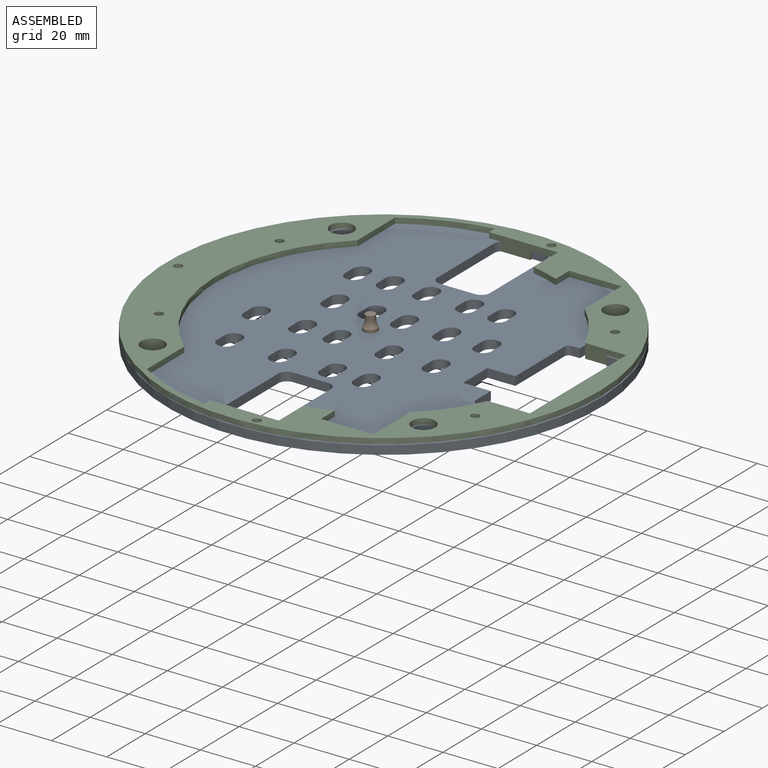
[diagram: assembled view]
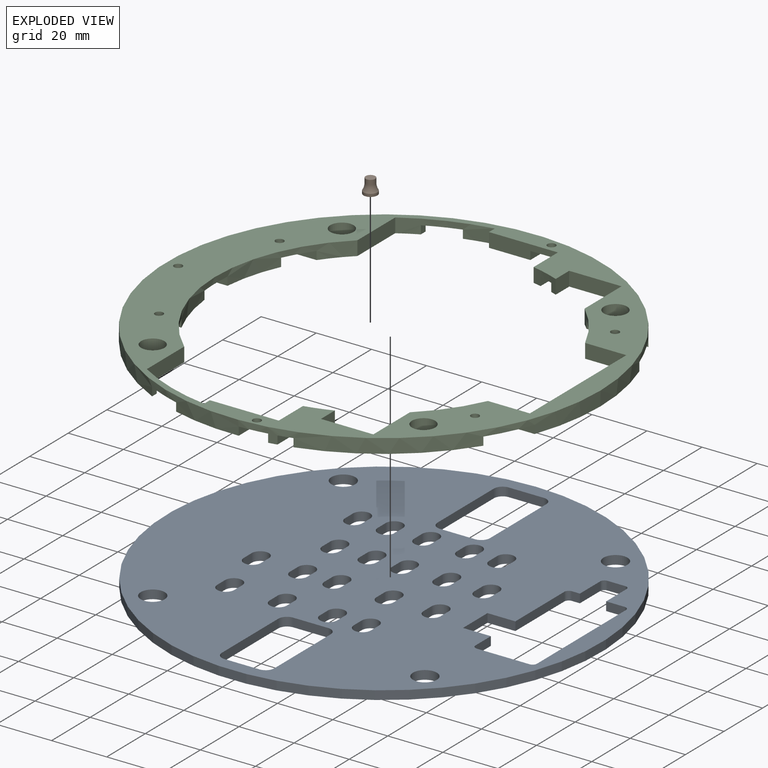
[diagram: exploded view]
GUIDED TOUR — MATED ASSEMBLY (Onshape document 0efaec865e1cf48acecaf9b9, AutoMate assembly 0efaec865e1cf48acecaf9b9_902ffaf8468b0cf322e7fb1f_577da3006865b25e9c6954a8_default)

This assembly has 3 components, labeled P0..P2 below (a component is one placed occurrence of a part; the same part can appear more than once), held together by 2 mates. A mate is a constraint between two components; its type names the relative motion it leaves free:
  FASTENED — locks the two components together rigidly (no relative motion),
  PLANAR — leaves sliding in the plane through the listed point (normal = the listed direction) and rotation about that normal free.
Axis/direction vectors are unit vectors and 'through' points are millimeter coordinates, both in the assembly's world frame.

MATES
  1. FASTENED "Fastened 1": P2 <-> P0, direction (0.000, 0.000, -1.000) through (-45.80, -50.73, -7.18) mm
  2. PLANAR "Planar 1": P0 <-> P1, direction (0.000, 0.000, 1.000) through (-1.19, -1.60, -4.00) mm

ASSEMBLY ORDER
  1. P2 — the base component [order verified]
  2. P0 [order verified]
  3. P1 [order verified]
(P0 verified with a relaxed clearance tolerance: the source model stores slight part interference there.)
Order-tag legend:
  [order verified] — this step's position reverses a verified removal order: the component was checked to insert without passing through the ones already placed.

Of the 3 components, 1 carries the full construction recipe — the FeatureScript program that regenerates the part's solid from scratch; the rest are supplied as boundary geometry only.
Each toured component is shown spotlighted twice — in the assembled view, then in the exploded view, where a leader line traces a displaced component back to its assembled socket (saturated green if recipe-attached, orange if geometry-only; every other component desaturated gray) — followed by its recipe or geometry summary and the mates that hold it.
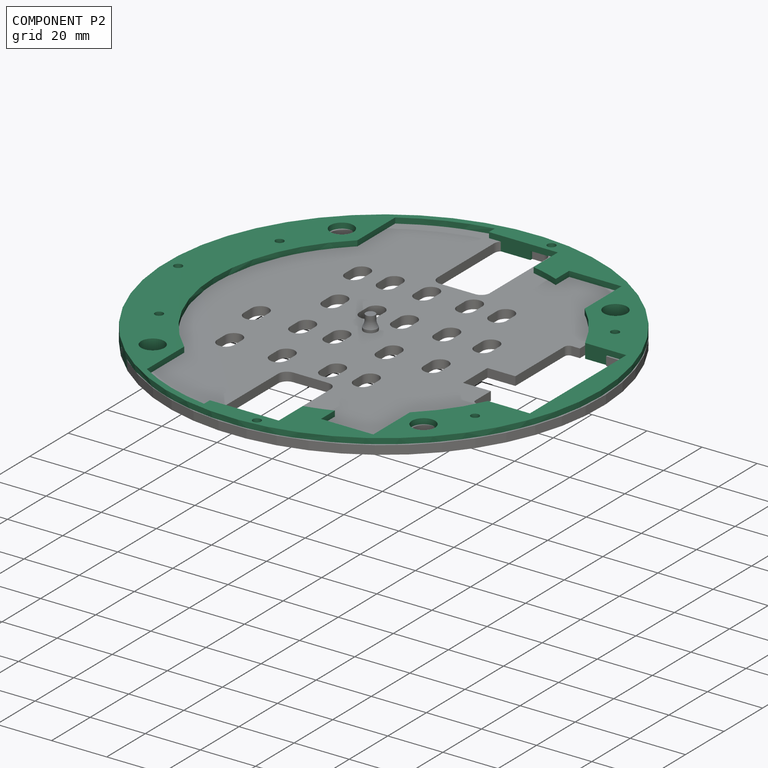
[diagram: component P2 — assembled]
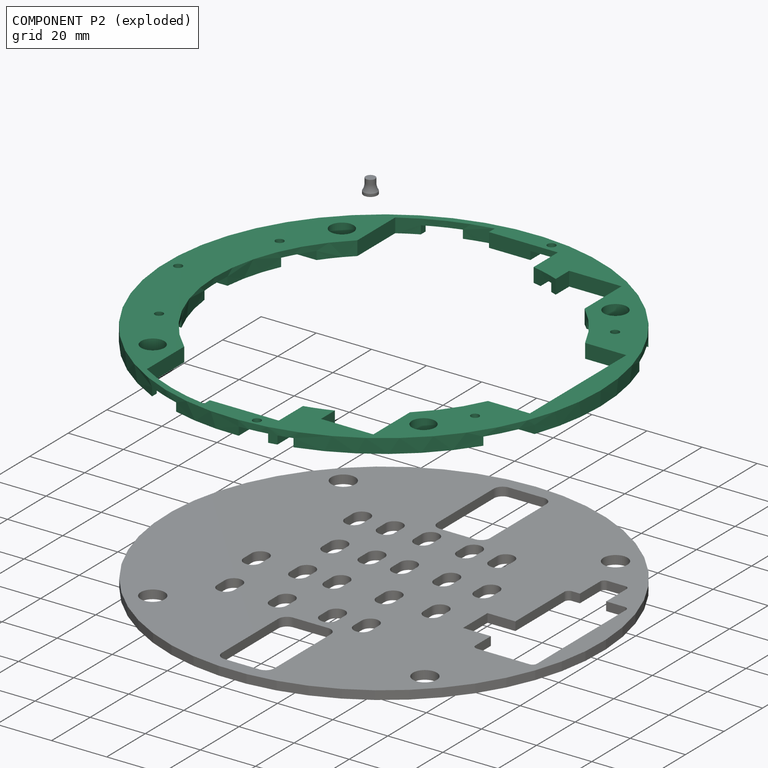
[diagram: component P2 — exploded]
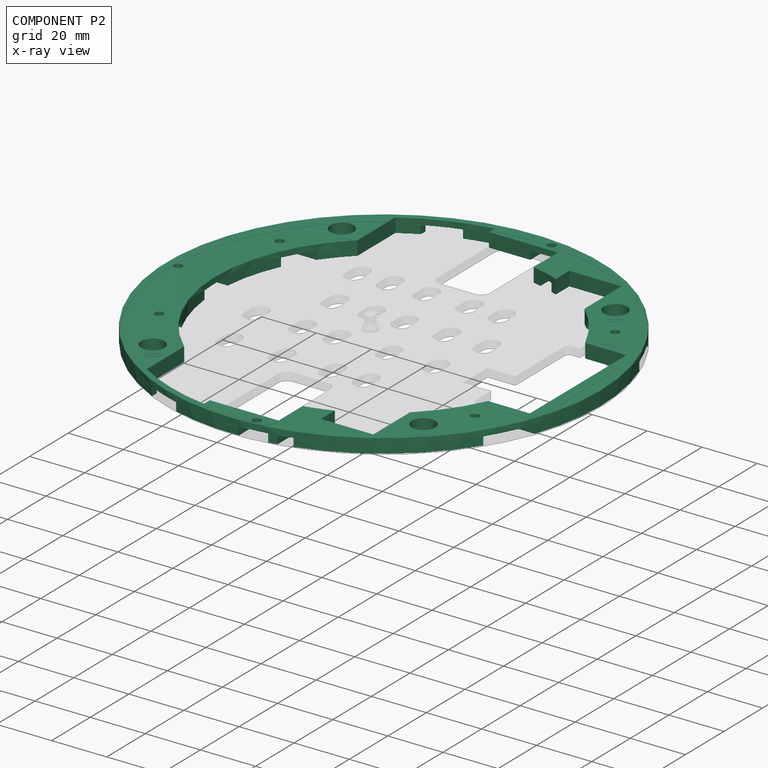
[diagram: component P2 — x-ray view]
COMPONENT P2 — recipe-attached (CADFS 00370976, mesh-verified: the recipe's output STEP matches this component's geometry to below the mesh-comparison resolution (tessellation chordal tolerance ~0.334 mm)).
Held by: FASTENED mate "Fastened 1" to P0.
Construction recipe (FeatureScript — the CAD program that rebuilds this solid; sketch coordinates are in the units given by the * unit suffixes, e.g. mm):

FeatureScript 1511;
import(path : "onshape/std/geometry.fs", version : "1511.0");
import(path : "onshape/std/common.fs", version : "1511.0");
const mm = millimeter;
const VERTEX = EntityType.VERTEX;
const EDGE = EntityType.EDGE;
const FACE = EntityType.FACE;
const BODY = EntityType.BODY;
function v(x, y){return vector(x, y);}
function OD(order){return orderDisambiguation(order);}
function OSD(set){return originalSetDisambiguation(set);}
function TD(topology){return topologyDisambiguation(topology);}
function TDD(query){return trueDependencyDisambiguation(query);}
function sQuery(a, b, c) {return sketchEntityQuery(a, b, c);}

annotation { "Feature Type Name" : "Feature", "Feature Type Description" : "" }
export const myFeature = defineFeature(function(context is Context, id is Id, definition is map)
    precondition{}
    {
        {
            var Q0;
            Q0=qCreatedBy(makeId("Top.planeOp"),FACE);
            var sketch = newSketch(context, id + "F0", { "sketchPlane" : qUnion([Q0])});
            skCircle(sketch, "E0", {"center": v(-0.13, 0.27) * mm, "radius": 78.74 * mm});
            skCircle(sketch, "E1", {"center": v(-0.13, 0.27) * mm, "radius": 61 * mm});
            skCircle(sketch, "E2", {"center": v(49.06, -49.32) * mm, "radius": 4.2 * mm});
            skCircle(sketch, "E3", {"center": v(-49.03, -49.6) * mm, "radius": 4.2 * mm});
            skCircle(sketch, "E4", {"center": v(-49.73, 49.45) * mm, "radius": 4.2 * mm});
            skCircle(sketch, "E5", {"center": v(49.76, 49.17) * mm, "radius": 4.2 * mm});
            skLineSegment(sketch, "E6", {"start": v(0, 0) * mm, "end": v(0, 79.01) * mm, "construction": true});
            skLineSegment(sketch, "E7", {"start": v(0, 72.51) * mm, "end": v(12.5, 72.51) * mm});
            skLineSegment(sketch, "E8", {"start": v(12.5, 72.51) * mm, "end": v(12.5, 59.95) * mm});
            skLineSegment(sketch, "E9", {"start": v(0, 72.51) * mm, "end": v(-12.5, 72.51) * mm});
            skLineSegment(sketch, "E10", {"start": v(-12.5, 72.51) * mm, "end": v(-12.5, 60) * mm});
            skLineSegment(sketch, "E11", {"start": v(12.37, -59.43) * mm, "end": v(12.37, -71.97) * mm});
            skLineSegment(sketch, "E12", {"start": v(12.37, -71.97) * mm, "end": v(-12.63, -71.97) * mm});
            skLineSegment(sketch, "E13", {"start": v(-12.63, -71.97) * mm, "end": v(-12.63, -59.43) * mm});
            skLineSegment(sketch, "E14", {"start": v(-0.13, 0.27) * mm, "end": v(-0.13, -78.47) * mm, "construction": true});
            skLineSegment(sketch, "E15", {"start": v(55.64, 25) * mm, "end": v(70.61, 25) * mm});
            skLineSegment(sketch, "E16", {"start": v(70.61, 25) * mm, "end": v(70.61, -25) * mm});
            skLineSegment(sketch, "E17", {"start": v(70.61, -25) * mm, "end": v(55.4, -25) * mm});
            skLineSegment(sketch, "E18", {"start": v(41.66, 44.71) * mm, "end": v(41.66, 63.86) * mm});
            skLineSegment(sketch, "E19", {"start": v(22.66, 56.86) * mm, "end": v(22.66, 63.86) * mm});
            skLineSegment(sketch, "E20", {"start": v(22.66, 63.86) * mm, "end": v(41.66, 63.86) * mm});
            skLineSegment(sketch, "E21", {"start": v(40.96, -44.81) * mm, "end": v(40.96, -63.8) * mm});
            skLineSegment(sketch, "E22", {"start": v(40.96, -63.8) * mm, "end": v(21.96, -63.8) * mm});
            skLineSegment(sketch, "E23", {"start": v(21.96, -63.8) * mm, "end": v(21.96, -56.59) * mm});
            skLineSegment(sketch, "E24", {"start": v(-41.23, 45.34) * mm, "end": v(-41.23, 64.93) * mm});
            skLineSegment(sketch, "E25", {"start": v(-40.53, -45.43) * mm, "end": v(-40.53, -64.81) * mm});
            skLineSegment(sketch, "E26", {"start": v(-12.5, 72.51) * mm, "end": v(-12.5, 75.54) * mm});
            skLineSegment(sketch, "E27", {"start": v(-12.5, 75.54) * mm, "end": v(-12.5, 78.04) * mm, "construction": true});
            skLineSegment(sketch, "E28", {"start": v(-41.23, 64.93) * mm, "end": v(-41.23, 67.43) * mm, "construction": true});
            skLineSegment(sketch, "E29", {"start": v(-12.63, -71.97) * mm, "end": v(-12.63, -74.97) * mm});
            skLineSegment(sketch, "E30", {"start": v(-12.63, -74.97) * mm, "end": v(-12.63, -77.47) * mm, "construction": true});
            skLineSegment(sketch, "E31", {"start": v(-40.53, -64.81) * mm, "end": v(-40.53, -67.31) * mm, "construction": true});
            skArc(sketch, "E32", {"start": v(-12.5, 75.54) * mm, "mid": v(-27.39, 71.65) * mm, "end": v(-41.23, 64.93) * mm});
            skArc(sketch, "E33", {"start": v(-40.53, -64.81) * mm, "mid": v(-27.1, -71.3) * mm, "end": v(-12.63, -74.97) * mm});
            skSolve(sketch);
        }
        {
            var Q0;
            Q0=makeQuery(id+"F0.imprint","IMPRINT",FACE,{"disambiguationData":[TD([[makeQuery(id+"F0.imprint","IMPRINT",EDGE,{"derivedFrom":sQuery(id+"F0.wireOp",EDGE,"E0")}),1.0]])]});
            extrude(context, id + "F1", {"entities" : qUnion([Q0]), "depth" : 5.17 * mm});
        }
        {
            var Q0;
            Q0=makeQuery(id+"F1.opExtrude","CAP_FACE",FACE,{"disambiguationData":[OSD([sQuery(id+"F0.wireOp",EDGE,"E0"),sQuery(id+"F0.wireOp",EDGE,"E1"),sQuery(id+"F0.wireOp",EDGE,"E2"),sQuery(id+"F0.wireOp",EDGE,"E3"),sQuery(id+"F0.wireOp",EDGE,"E4"),sQuery(id+"F0.wireOp",EDGE,"E5"),sQuery(id+"F0.wireOp",EDGE,"E7"),sQuery(id+"F0.wireOp",EDGE,"E8"),sQuery(id+"F0.wireOp",EDGE,"E9"),sQuery(id+"F0.wireOp",EDGE,"E10"),sQuery(id+"F0.wireOp",EDGE,"E11"),sQuery(id+"F0.wireOp",EDGE,"E12"),sQuery(id+"F0.wireOp",EDGE,"E13"),sQuery(id+"F0.wireOp",EDGE,"E15"),sQuery(id+"F0.wireOp",EDGE,"E16"),sQuery(id+"F0.wireOp",EDGE,"E17"),sQuery(id+"F0.wireOp",EDGE,"VDoqfpsv-4qcT-wrSo-6fLa-toxSMHrRfi2n"),sQuery(id+"F0.wireOp",EDGE,"kHyOE8iL-SrmW-cCEl-JhYE-iEjDphq27qqo"),sQuery(id+"F0.wireOp",EDGE,"IaEaYM1Z-oLR1-5D0C-0tBp-6euCYm71ufNU"),sQuery(id+"F0.wireOp",EDGE,"CqAKj5as-z6O8-Euua-ijw3-IaK4U2F1WzIA"),sQuery(id+"F0.wireOp",EDGE,"bdrpM5pd-59yM-zCnh-CLfW-zA1UQOxDqrim"),sQuery(id+"F0.wireOp",EDGE,"NGnk7T17-qjil-4RGJ-5A7U-nu3JMBgdJVSq")])],"isStart":true});
            var sketch = newSketch(context, id + "F2", { "sketchPlane" : qUnion([Q0])});
            skLineSegment(sketch, "E34", {"start": v(-49.2, 35.94) * mm, "end": v(-70.04, 35.94) * mm});
            skLineSegment(sketch, "E35", {"start": v(-55.2, 25.94) * mm, "end": v(-74.37, 25.94) * mm});
            skLineSegment(sketch, "E36", {"start": v(-22.63, 72.77) * mm, "end": v(-22.63, 75.18) * mm});
            skLineSegment(sketch, "E37", {"start": v(-34.63, 68.08) * mm, "end": v(-34.63, 70.5) * mm});
            skLineSegment(sketch, "E38", {"start": v(-55.4, -26.06) * mm, "end": v(-74.53, -26.06) * mm});
            skLineSegment(sketch, "E39", {"start": v(-49.53, -36.06) * mm, "end": v(-70.27, -36.06) * mm});
            skLineSegment(sketch, "E40", {"start": v(-22.5, -73.28) * mm, "end": v(-22.5, -75.77) * mm});
            skLineSegment(sketch, "E41", {"start": v(-34.5, -68.62) * mm, "end": v(-34.5, -71.11) * mm});
            skLineSegment(sketch, "E42", {"start": v(-60.85, -6.06) * mm, "end": v(-78.65, -6.06) * mm});
            skLineSegment(sketch, "E43", {"start": v(-60.8, 5.94) * mm, "end": v(-78.62, 5.94) * mm});
            skLineSegment(sketch, "E44", {"start": v(12.5, -72.51) * mm, "end": v(12.5, -78) * mm});
            skLineSegment(sketch, "E45", {"start": v(2.5, -72.51) * mm, "end": v(2.5, -78.97) * mm});
            skLineSegment(sketch, "E46", {"start": v(12.37, 71.97) * mm, "end": v(12.37, 77.47) * mm});
            skLineSegment(sketch, "E47", {"start": v(2.37, 71.97) * mm, "end": v(2.37, 78.43) * mm});
            skLineSegment(sketch, "E48", {"start": v(20.37, 57.18) * mm, "end": v(20.37, 75.75) * mm});
            skLineSegment(sketch, "E49", {"start": v(15.37, 76.93) * mm, "end": v(15.37, 58.72) * mm});
            skLineSegment(sketch, "E50", {"start": v(20.5, -57.68) * mm, "end": v(20.5, -76.26) * mm});
            skLineSegment(sketch, "E51", {"start": v(15.5, -59.24) * mm, "end": v(15.5, -77.45) * mm});
            skLineSegment(sketch, "E52", {"start": v(54.7, -27) * mm, "end": v(73.94, -27) * mm});
            skLineSegment(sketch, "E53", {"start": v(54.44, 27) * mm, "end": v(73.74, 27) * mm});
            skLineSegment(sketch, "E54", {"start": v(66.33, -42.5) * mm, "end": v(43.9, -42.5) * mm});
            skLineSegment(sketch, "E55", {"start": v(43.36, 42.5) * mm, "end": v(65.98, 42.5) * mm});
            skSolve(sketch);
        }
        {
            var Q0;
            {var subQ0=sQuery(id+"F2.wireOp",EDGE,"E36");Q0=makeQuery(id+"F2.imprint","IMPRINT",FACE,{"disambiguationData":[TD([[makeQuery(id+"F2.imprint","IMPRINT",EDGE,{"derivedFrom":subQ0}),1.0]])]});}
            var Q1;
            {var subQ0=sQuery(id+"F2.wireOp",EDGE,"qSOFF5Qn-LBtT-ckb4-KCcS-4EMrhRVFEw5l");Q1=makeQuery(id+"F2.imprint","IMPRINT",FACE,{"disambiguationData":[TD([[makeQuery(id+"F2.imprint","IMPRINT",EDGE,{"derivedFrom":subQ0}),-1.0]])]});}
            var Q2;
            {var subQ0=sQuery(id+"F2.wireOp",EDGE,"q6fSSL3S-2UqV-hRAR-x4fO-Y75Hsksp0FtS");Q2=makeQuery(id+"F2.imprint","IMPRINT",FACE,{"disambiguationData":[TD([[makeQuery(id+"F2.imprint","IMPRINT",EDGE,{"derivedFrom":subQ0}),1.0]])]});}
            var Q3;
            {var subQ0=sQuery(id+"F2.wireOp",EDGE,"E40");Q3=makeQuery(id+"F2.imprint","IMPRINT",FACE,{"disambiguationData":[TD([[makeQuery(id+"F2.imprint","IMPRINT",EDGE,{"derivedFrom":subQ0}),-1.0]])]});}
            var Q4;
            {var subQ0=sQuery(id+"F2.wireOp",EDGE,"E38");Q4=makeQuery(id+"F2.imprint","IMPRINT",FACE,{"disambiguationData":[TD([[makeQuery(id+"F2.imprint","IMPRINT",EDGE,{"derivedFrom":subQ0}),1.0]])]});}
            var Q5;
            {var subQ0=sQuery(id+"F2.wireOp",EDGE,"E42");Q5=makeQuery(id+"F2.imprint","IMPRINT",FACE,{"disambiguationData":[TD([[makeQuery(id+"F2.imprint","IMPRINT",EDGE,{"derivedFrom":subQ0}),-1.0]])]});}
            var Q6;
            {var subQ0=sQuery(id+"F2.wireOp",EDGE,"E34");Q6=makeQuery(id+"F2.imprint","IMPRINT",FACE,{"disambiguationData":[TD([[makeQuery(id+"F2.imprint","IMPRINT",EDGE,{"derivedFrom":subQ0}),1.0]])]});}
            var Q7;
            {var subQ0=sQuery(id+"F2.wireOp",EDGE,"E44");Q7=makeQuery(id+"F2.imprint","IMPRINT",FACE,{"disambiguationData":[TD([[makeQuery(id+"F2.imprint","IMPRINT",EDGE,{"derivedFrom":subQ0}),-1.0]])]});}
            var Q8;
            {var subQ0=sQuery(id+"F2.wireOp",EDGE,"E46");Q8=makeQuery(id+"F2.imprint","IMPRINT",FACE,{"disambiguationData":[TD([[makeQuery(id+"F2.imprint","IMPRINT",EDGE,{"derivedFrom":subQ0}),1.0]])]});}
            var Q9;
            {var subQ0=sQuery(id+"F2.wireOp",EDGE,"3tUUMQLs-xen7-DnnY-Bd8B-tcTG2vnb8p7U");Q9=makeQuery(id+"F2.imprint","IMPRINT",FACE,{"disambiguationData":[TD([[makeQuery(id+"F2.imprint","IMPRINT",EDGE,{"derivedFrom":subQ0}),-1.0]])]});}
            var Q10;
            {var subQ0=sQuery(id+"F2.wireOp",EDGE,"E48");Q10=makeQuery(id+"F2.imprint","IMPRINT",FACE,{"disambiguationData":[TD([[makeQuery(id+"F2.imprint","IMPRINT",EDGE,{"derivedFrom":subQ0}),1.0]])]});}
            var Q11;
            {var subQ0=sQuery(id+"F2.wireOp",EDGE,"E50");Q11=makeQuery(id+"F2.imprint","IMPRINT",FACE,{"disambiguationData":[TD([[makeQuery(id+"F2.imprint","IMPRINT",EDGE,{"derivedFrom":subQ0}),-1.0]])]});}
            var Q12;
            {var subQ0=sQuery(id+"F2.wireOp",EDGE,"E52");Q12=makeQuery(id+"F2.imprint","IMPRINT",FACE,{"disambiguationData":[TD([[makeQuery(id+"F2.imprint","IMPRINT",EDGE,{"derivedFrom":subQ0}),-1.0]])]});}
            var Q13;
            {var subQ0=sQuery(id+"F2.wireOp",EDGE,"E53");Q13=makeQuery(id+"F2.imprint","IMPRINT",FACE,{"disambiguationData":[TD([[makeQuery(id+"F2.imprint","IMPRINT",EDGE,{"derivedFrom":subQ0}),1.0]])]});}
            extrude(context, id + "F3", {"entities" : qUnion([Q0, Q1, Q2, Q3, Q4, Q5, Q6, Q7, Q8, Q9, Q10, Q11, Q12, Q13]), "operationType" : NewBodyOperationType.REMOVE, "oppositeDirection" : true, "depth" : 3 * mm});
        }
        {
            var Q0;
            Q0=makeQuery(id+"F3.boolean.opBoolean","COPY",FACE,{"derivedFrom":makeQuery(id+"F3.opExtrude","CAP_FACE",FACE,{"disambiguationData":[OSD([sQuery(id+"F0.wireOp",EDGE,"E0"),sQuery(id+"F0.wireOp",EDGE,"E1"),sQuery(id+"F2.wireOp",EDGE,"E38"),sQuery(id+"F2.wireOp",EDGE,"E39")])],"isStart":false})});
            var sketch = newSketch(context, id + "F4", { "sketchPlane" : qUnion([Q0])});
            skCircle(sketch, "E56", {"center": v(-59.9, -31.68) * mm, "radius": 1.5 * mm});
            skPoint(sketch, "E56.centerSnap0", {"position": v(-59.9, -36.06) * mm});
            skCircle(sketch, "E57", {"center": v(-59.9, 30.79) * mm, "radius": 1.5 * mm});
            skCircle(sketch, "E58", {"center": v(8.06, -75.57) * mm, "radius": 1.5 * mm});
            skCircle(sketch, "E59", {"center": v(58.5, -36.47) * mm, "radius": 1.5 * mm});
            skCircle(sketch, "E60", {"center": v(58.24, 35.74) * mm, "radius": 1.5 * mm});
            skCircle(sketch, "E61", {"center": v(6.96, 75.56) * mm, "radius": 1.5 * mm});
            skCircle(sketch, "E62", {"center": v(-74.53, 0) * mm, "radius": 1.5 * mm});
            skSolve(sketch);
        }
        {
            var Q0;
            Q0=makeQuery(id+"F4.imprint","IMPRINT",FACE,{"disambiguationData":[TD([[makeQuery(id+"F4.imprint","IMPRINT",EDGE,{"derivedFrom":sQuery(id+"F4.wireOp",EDGE,"E62")}),1.0]])]});
            var Q1;
            Q1=makeQuery(id+"F4.imprint","IMPRINT",FACE,{"disambiguationData":[TD([[makeQuery(id+"F4.imprint","IMPRINT",EDGE,{"derivedFrom":sQuery(id+"F4.wireOp",EDGE,"E57")}),1.0]])]});
            var Q2;
            Q2=makeQuery(id+"F4.imprint","IMPRINT",FACE,{"disambiguationData":[TD([[makeQuery(id+"F4.imprint","IMPRINT",EDGE,{"derivedFrom":sQuery(id+"F4.wireOp",EDGE,"E56")}),1.0]])]});
            var Q3;
            Q3=makeQuery(id+"F4.imprint","IMPRINT",FACE,{"disambiguationData":[TD([[makeQuery(id+"F4.imprint","IMPRINT",EDGE,{"derivedFrom":sQuery(id+"F4.wireOp",EDGE,"E58")}),1.0]])]});
            var Q4;
            Q4=makeQuery(id+"F4.imprint","IMPRINT",FACE,{"disambiguationData":[TD([[makeQuery(id+"F4.imprint","IMPRINT",EDGE,{"derivedFrom":sQuery(id+"F4.wireOp",EDGE,"a8RiTg22-5cp5-0Lyg-D3pn-yzNnpAkmeHB0")}),1.0]])]});
            var Q5;
            Q5=makeQuery(id+"F4.imprint","IMPRINT",FACE,{"disambiguationData":[TD([[makeQuery(id+"F4.imprint","IMPRINT",EDGE,{"derivedFrom":sQuery(id+"F4.wireOp",EDGE,"HCF0FYdm-k2oz-RcCJ-R9aZ-c2gy1UOGrMCM")}),1.0]])]});
            var Q6;
            Q6=makeQuery(id+"F4.imprint","IMPRINT",FACE,{"disambiguationData":[TD([[makeQuery(id+"F4.imprint","IMPRINT",EDGE,{"derivedFrom":sQuery(id+"F4.wireOp",EDGE,"E61")}),1.0]])]});
            var Q7;
            Q7=makeQuery(id+"F4.imprint","IMPRINT",FACE,{"disambiguationData":[TD([[makeQuery(id+"F4.imprint","IMPRINT",EDGE,{"derivedFrom":sQuery(id+"F4.wireOp",EDGE,"E60")}),1.0]])]});
            var Q8;
            Q8=makeQuery(id+"F4.imprint","IMPRINT",FACE,{"disambiguationData":[TD([[makeQuery(id+"F4.imprint","IMPRINT",EDGE,{"derivedFrom":sQuery(id+"F4.wireOp",EDGE,"E59")}),1.0]])]});
            extrude(context, id + "F5", {"entities" : qUnion([Q0, Q1, Q2, Q3, Q4, Q5, Q6, Q7, Q8]), "operationType" : NewBodyOperationType.REMOVE, "oppositeDirection" : true, "depth" : 25 * mm});
        }
    });
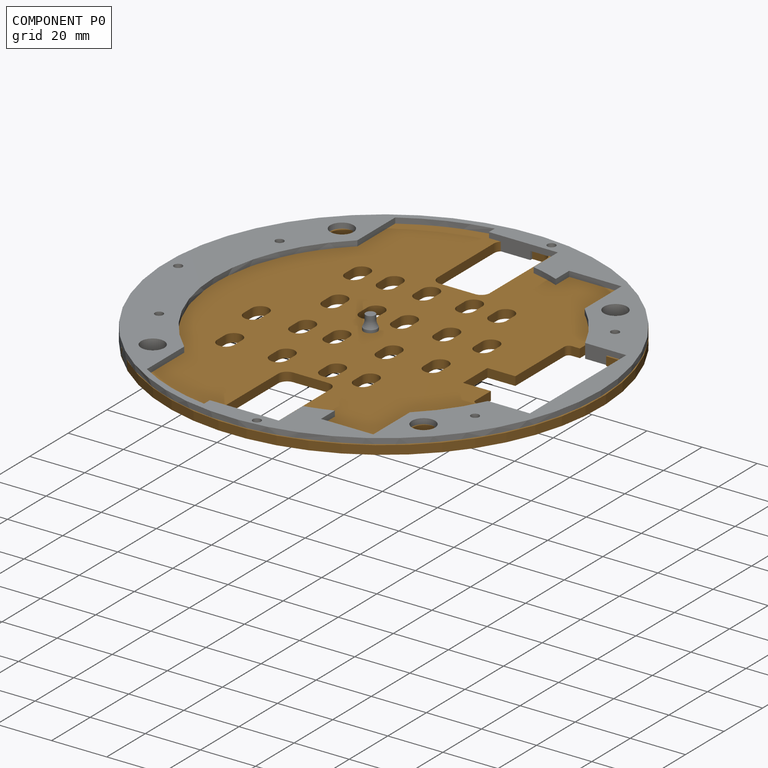
[diagram: component P0 — assembled]
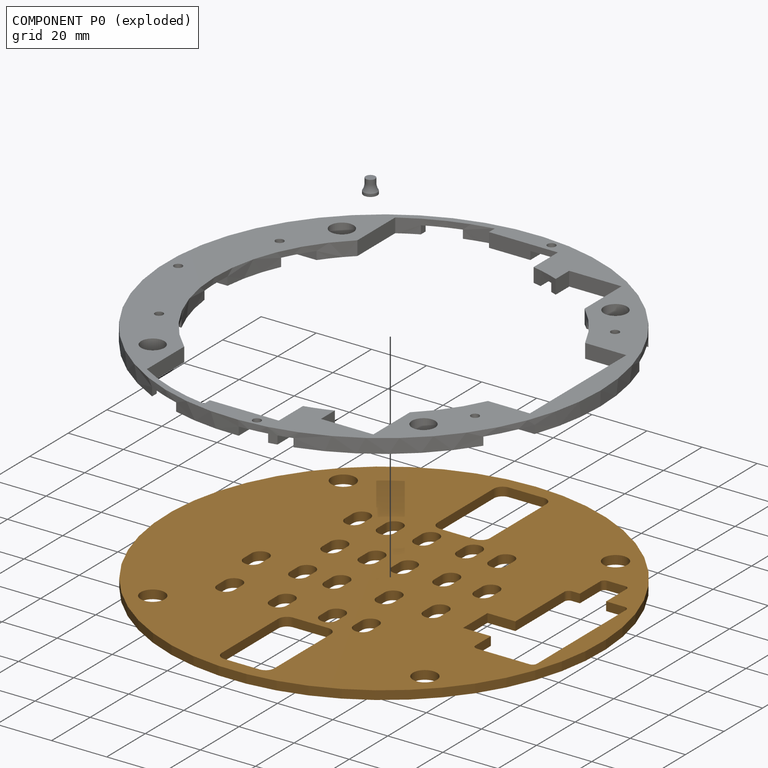
[diagram: component P0 — exploded]
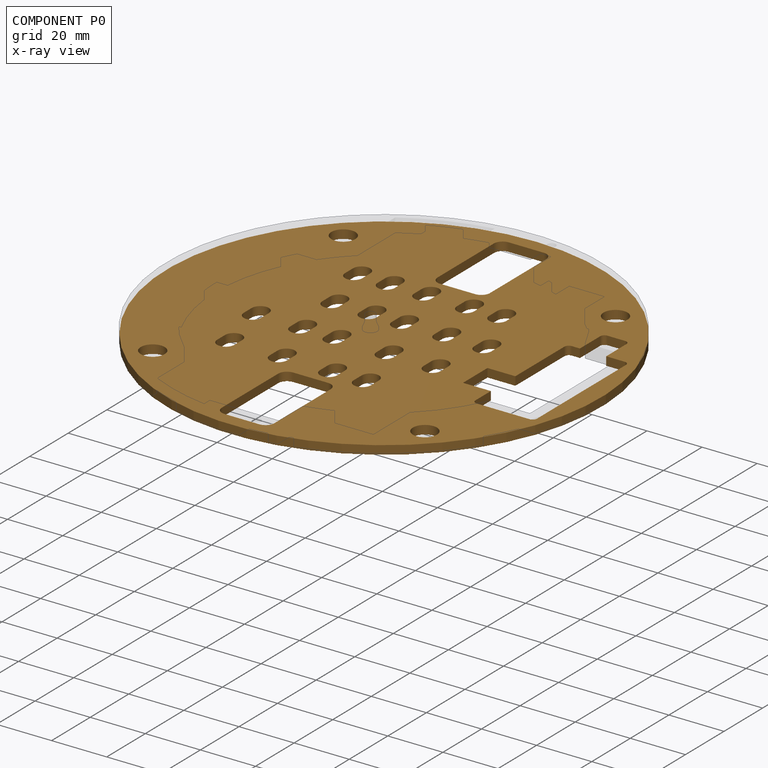
[diagram: component P0 — x-ray view]
COMPONENT P0 — geometry summary (no construction recipe available for this part):
  bounding box: 157.5 x 157.5 x 3.2 mm
  B-rep topology: 1 solid, 117 faces, 690 edges
  volume: 49178 mm^3 (62% of its bounding box)
  symmetry: mirror-symmetric across its y mid-plane
Held by: FASTENED mate "Fastened 1" to P2; PLANAR mate "Planar 1" to P1.
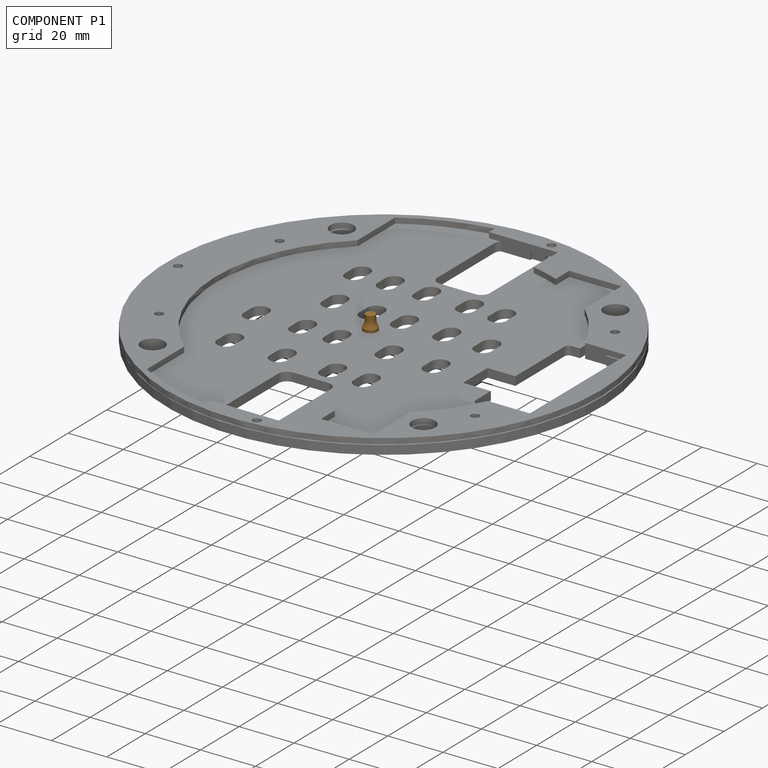
[diagram: component P1 — assembled]
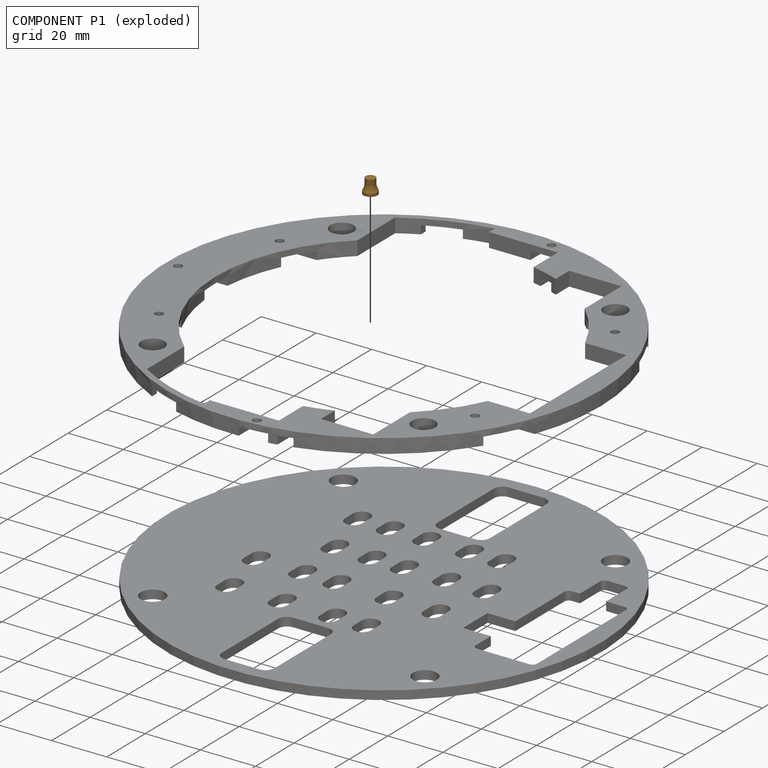
[diagram: component P1 — exploded]
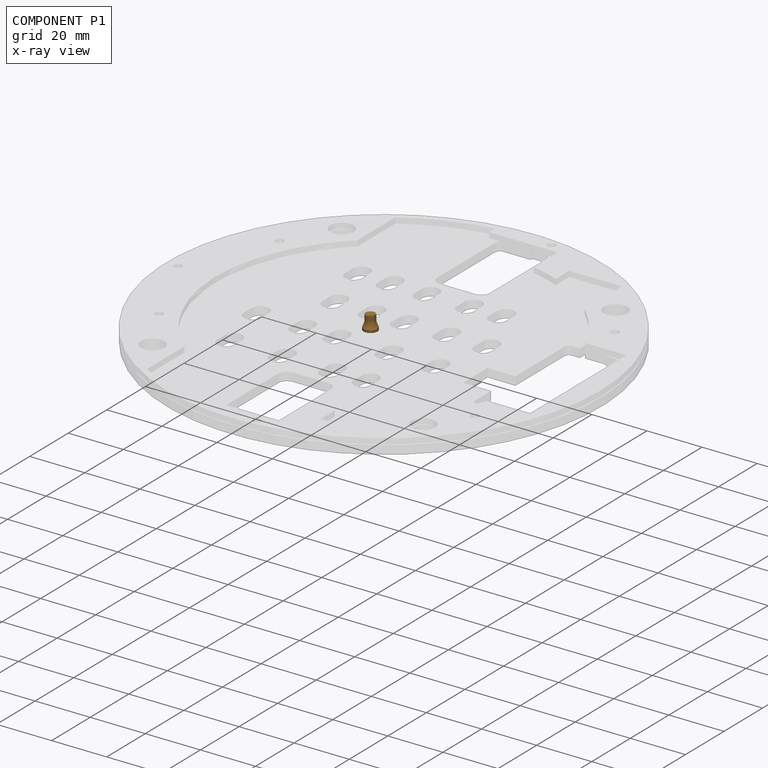
[diagram: component P1 — x-ray view]
COMPONENT P1 — geometry summary (no construction recipe available for this part):
  bounding box: 7.2 x 6.9 x 6.9 mm
  B-rep topology: 1 solid, 5 faces, 18 edges
  volume: 69 mm^3 (20% of its bounding box)
  symmetry: revolution-symmetric about the z axis through its bounding-box center; mirror-symmetric across its x mid-plane, y mid-plane
Held by: PLANAR mate "Planar 1" to P0.
PROVENANCE & LICENSES
Assembly (occurrences, transforms, mates, per-part STEP geometry): AutoMate dataset, Zenodo record 7776208, CC0.
Construction recipes: CADFS (HuggingFace VladPyatov/CADFS, CC-BY-4.0, layered over the ABC dataset), FeatureScript reconstruction programs keyed by ABC model id.
Join: ABC meta listings map ABC model id -> Onshape documentId; within a shared document, parts are matched by geometric signature (bounding-box dims + volume at 0.1% relative tolerance, exact B-rep face/solid counts).
Verification: 1 of this assembly's 3 components carries a recipe attachment, and every attachment is mesh-verified: the CADFS STEP and the AutoMate member STEP were compared as meshes in their shared local frame (symmetric sampled-point-to-mesh distance); worst across the 1 attachment: below the mesh-comparison resolution (tessellation chordal tolerance ~0.334 mm) on a 223 mm part.
Renders: orthographic iso camera (az 35 / el 25); the floor grid conveys scale (grid pitch printed in each image; no ruler). In the exploded view each component is displaced by its stored offset vector: the offsets alone carry the explosion direction (mate normal/axis signs are not orientation cues and do not encode it), and separation distances are assigned per mate-chain, not proportionally to assembly-order depth.
